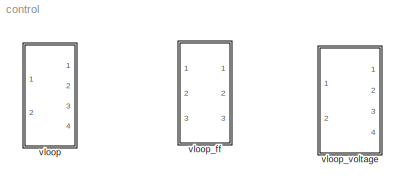
MODEL control
KIND library
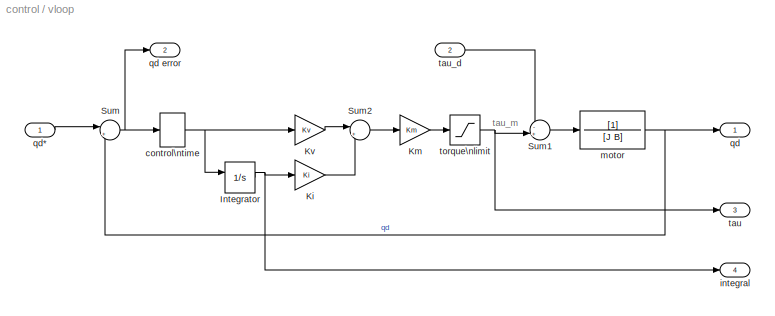
BLOCK [SubSystem] vloop
  FunctionWithSeparateData = off
  MaskHideContents = off
  MinAlgLoopOccurrences = off
  Opaque = off
  Ports = [2, 4]
  PropExecContextOutsideSubsystem = off
  RTWSystemCode = Auto
  RequestExecContextInheritance = off
  SID = 24
BLOCK [Integrator] vloop/Integrator
  ExternalReset = level
  LimitOutput = on
  LowerSaturationLimit = -1
  Ports = [2, 1]
  SID = 177
  UpperSaturationLimit = 1
BLOCK [Gain] vloop/Ki
  Gain = Ki
  OutDataTypeStr = Inherit: Inherit via internal rule
  ParamDataTypeStr = Inherit: Inherit via internal rule
  SID = 178
  SaturateOnIntegerOverflow = off
BLOCK [Gain] vloop/Km
  Gain = Km
  OutDataTypeStr = Inherit: Inherit via internal rule
  ParamDataTypeStr = Inherit: Inherit via internal rule
  SID = 179
  SaturateOnIntegerOverflow = off
BLOCK [Gain] vloop/Kv
  Gain = Kv
  OutDataTypeStr = Inherit: Inherit via internal rule
  ParamDataTypeStr = Inherit: Inherit via internal rule
  SID = 180
  SaturateOnIntegerOverflow = off
BLOCK [Sum] vloop/Sum
  IconShape = round
  InputSameDT = off
  Inputs = |+-
  OutDataTypeStr = Inherit: Inherit via internal rule
  Ports = [2, 1]
  SID = 181
  SaturateOnIntegerOverflow = off
BLOCK [Sum] vloop/Sum1
  IconShape = round
  InputSameDT = off
  Inputs = -+|
  OutDataTypeStr = Inherit: Inherit via internal rule
  Ports = [2, 1]
  SID = 182
  SaturateOnIntegerOverflow = off
BLOCK [Sum] vloop/Sum2
  IconShape = round
  InputSameDT = off
  Inputs = |++
  OutDataTypeStr = Inherit: Inherit via internal rule
  Ports = [2, 1]
  SID = 183
  SaturateOnIntegerOverflow = off
BLOCK [Delay] vloop/control\ntime
  DelayLength = 1
  InputPortMap = u0
  InputProcessing = Inherited
  Ports = [1, 1]
  SID = 184
  SampleTime = T
  UserData = DataTag0
  UserDataPersistent = on
BLOCK [Outport] vloop/integral
  IconDisplay = Port number
  Port = 4
  SID = 190
BLOCK [TransferFcn] vloop/motor
  ContinuousStateAttributes = 'qd'
  Denominator = [J B]
  SID = 185
BLOCK [Outport] vloop/qd
  IconDisplay = Port number
  SID = 187
BLOCK [Outport] vloop/qd error
  IconDisplay = Port number
  Port = 2
  SID = 188
BLOCK [Inport] vloop/qd*
  IconDisplay = Port number
  SID = 175
BLOCK [Outport] vloop/tau
  IconDisplay = Port number
  Port = 3
  SID = 189
BLOCK [Inport] vloop/tau_d
  IconDisplay = Port number
  Port = 2
  SID = 176
BLOCK [Saturate] vloop/torque\nlimit
  InputPortMap = u0
  LowerLimit = -tau_max
  Ports = [1, 1]
  SID = 186
  UpperLimit = tau_max
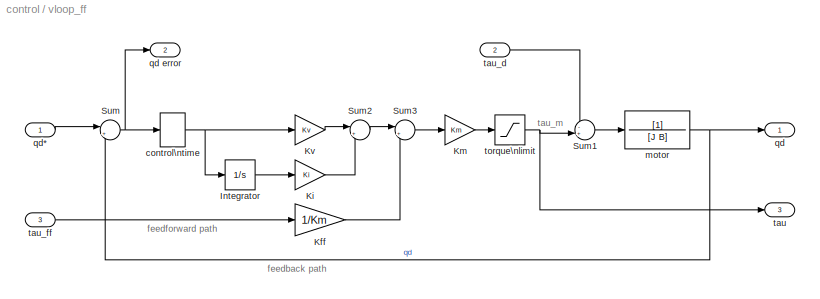
BLOCK [SubSystem] vloop_ff
  FunctionWithSeparateData = off
  MaskHideContents = off
  MinAlgLoopOccurrences = off
  Opaque = off
  Ports = [3, 3]
  PropExecContextOutsideSubsystem = off
  RTWSystemCode = Auto
  RequestExecContextInheritance = off
  SID = 41
BLOCK [Integrator] vloop_ff/Integrator
  Ports = [1, 1]
  SID = 45
BLOCK [Gain] vloop_ff/Kff
  Gain = 1/Km
  OutDataTypeStr = Inherit: Inherit via internal rule
  ParamDataTypeStr = Inherit: Inherit via internal rule
  SID = 58
  SaturateOnIntegerOverflow = off
BLOCK [Gain] vloop_ff/Ki
  Gain = Ki
  OutDataTypeStr = Inherit: Inherit via internal rule
  ParamDataTypeStr = Inherit: Inherit via internal rule
  SID = 44
  SaturateOnIntegerOverflow = off
BLOCK [Gain] vloop_ff/Km
  Gain = Km
  OutDataTypeStr = Inherit: Inherit via internal rule
  ParamDataTypeStr = Inherit: Inherit via internal rule
  SID = 46
  SaturateOnIntegerOverflow = off
BLOCK [Gain] vloop_ff/Kv
  Gain = Kv
  OutDataTypeStr = Inherit: Inherit via internal rule
  ParamDataTypeStr = Inherit: Inherit via internal rule
  SID = 47
  SaturateOnIntegerOverflow = off
BLOCK [Sum] vloop_ff/Sum
  IconShape = round
  InputSameDT = off
  Inputs = |+-
  OutDataTypeStr = Inherit: Inherit via internal rule
  Ports = [2, 1]
  SID = 48
  SaturateOnIntegerOverflow = off
BLOCK [Sum] vloop_ff/Sum1
  IconShape = round
  InputSameDT = off
  Inputs = -+|
  OutDataTypeStr = Inherit: Inherit via internal rule
  Ports = [2, 1]
  SID = 49
  SaturateOnIntegerOverflow = off
BLOCK [Sum] vloop_ff/Sum2
  IconShape = round
  InputSameDT = off
  Inputs = |++
  OutDataTypeStr = Inherit: Inherit via internal rule
  Ports = [2, 1]
  SID = 50
  SaturateOnIntegerOverflow = off
BLOCK [Sum] vloop_ff/Sum3
  IconShape = round
  InputSameDT = off
  Inputs = |++
  OutDataTypeStr = Inherit: Inherit via internal rule
  Ports = [2, 1]
  SID = 57
  SaturateOnIntegerOverflow = off
BLOCK [Delay] vloop_ff/control\ntime
  DelayLength = 1
  InputPortMap = u0
  InputProcessing = Inherited
  Ports = [1, 1]
  SID = 51
  SampleTime = T
  UserData = DataTag1
  UserDataPersistent = on
BLOCK [TransferFcn] vloop_ff/motor
  ContinuousStateAttributes = 'qd'
  Denominator = [J B]
  SID = 52
BLOCK [Outport] vloop_ff/qd
  IconDisplay = Port number
  SID = 54
BLOCK [Outport] vloop_ff/qd error
  IconDisplay = Port number
  Port = 2
  SID = 55
BLOCK [Inport] vloop_ff/qd*
  IconDisplay = Port number
  SID = 42
BLOCK [Outport] vloop_ff/tau
  IconDisplay = Port number
  Port = 3
  SID = 56
BLOCK [Inport] vloop_ff/tau_d
  IconDisplay = Port number
  Port = 2
  SID = 43
BLOCK [Inport] vloop_ff/tau_ff
  IconDisplay = Port number
  Port = 3
  SID = 59
BLOCK [Saturate] vloop_ff/torque\nlimit
  InputPortMap = u0
  LowerLimit = -tau_max
  Ports = [1, 1]
  SID = 53
  UpperLimit = tau_max
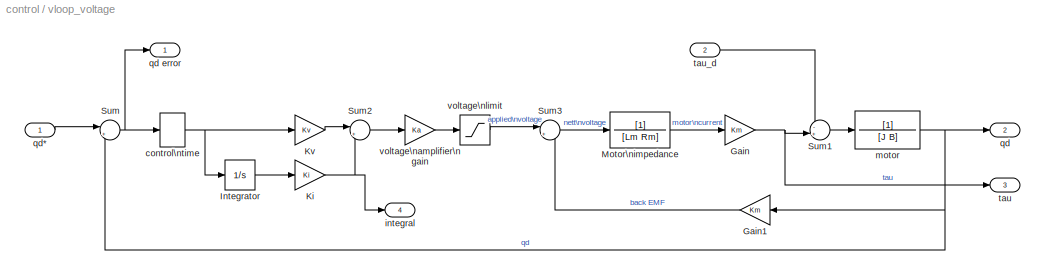
BLOCK [SubSystem] vloop_voltage
  FunctionWithSeparateData = off
  MaskHideContents = off
  MinAlgLoopOccurrences = off
  Opaque = off
  Ports = [2, 4]
  PropExecContextOutsideSubsystem = off
  RTWSystemCode = Auto
  RequestExecContextInheritance = off
  SID = 163
BLOCK [Gain] vloop_voltage/Gain
  Gain = Km
  OutDataTypeStr = Inherit: Inherit via internal rule
  ParamDataTypeStr = Inherit: Inherit via internal rule
  SID = 171
  SaturateOnIntegerOverflow = off
BLOCK [Gain] vloop_voltage/Gain1
  Gain = Km
  OutDataTypeStr = Inherit: Inherit via internal rule
  ParamDataTypeStr = Inherit: Inherit via internal rule
  SID = 172
  SaturateOnIntegerOverflow = off
BLOCK [Integrator] vloop_voltage/Integrator
  Ports = [1, 1]
  SID = 149
BLOCK [Gain] vloop_voltage/Ki
  Gain = Ki
  OutDataTypeStr = Inherit: Inherit via internal rule
  ParamDataTypeStr = Inherit: Inherit via internal rule
  SID = 150
  SaturateOnIntegerOverflow = off
BLOCK [Gain] vloop_voltage/Kv
  Gain = Kv
  OutDataTypeStr = Inherit: Inherit via internal rule
  ParamDataTypeStr = Inherit: Inherit via internal rule
  SID = 152
  SaturateOnIntegerOverflow = off
BLOCK [TransferFcn] vloop_voltage/Motor\nimpedance
  Denominator = [Lm Rm]
  SID = 170
BLOCK [Sum] vloop_voltage/Sum
  IconShape = round
  InputSameDT = off
  Inputs = |+-
  OutDataTypeStr = Inherit: Inherit via internal rule
  Ports = [2, 1]
  SID = 153
  SaturateOnIntegerOverflow = off
BLOCK [Sum] vloop_voltage/Sum1
  IconShape = round
  InputSameDT = off
  Inputs = -+|
  OutDataTypeStr = Inherit: Inherit via internal rule
  Ports = [2, 1]
  SID = 154
  SaturateOnIntegerOverflow = off
BLOCK [Sum] vloop_voltage/Sum2
  IconShape = round
  InputSameDT = off
  Inputs = |++
  OutDataTypeStr = Inherit: Inherit via internal rule
  Ports = [2, 1]
  SID = 155
  SaturateOnIntegerOverflow = off
BLOCK [Sum] vloop_voltage/Sum3
  IconShape = round
  InputSameDT = off
  Inputs = |+-
  OutDataTypeStr = Inherit: Inherit via internal rule
  Ports = [2, 1]
  SID = 173
  SaturateOnIntegerOverflow = off
BLOCK [Delay] vloop_voltage/control\ntime
  DelayLength = 1
  InputPortMap = u0
  InputProcessing = Inherited
  Ports = [1, 1]
  SID = 156
  SampleTime = T
  UserData = DataTag2
  UserDataPersistent = on
BLOCK [Outport] vloop_voltage/integral
  IconDisplay = Port number
  Port = 4
  SID = 174
BLOCK [TransferFcn] vloop_voltage/motor
  ContinuousStateAttributes = 'qd'
  Denominator = [J B]
  SID = 157
BLOCK [Outport] vloop_voltage/qd
  IconDisplay = Port number
  Port = 2
  SID = 167
BLOCK [Outport] vloop_voltage/qd error
  IconDisplay = Port number
  SID = 164
BLOCK [Inport] vloop_voltage/qd*
  IconDisplay = Port number
  SID = 165
BLOCK [Outport] vloop_voltage/tau
  IconDisplay = Port number
  Port = 3
  SID = 168
BLOCK [Inport] vloop_voltage/tau_d
  IconDisplay = Port number
  Port = 2
  SID = 166
BLOCK [Gain] vloop_voltage/voltage\namplifier\ngain
  Gain = Ka
  OutDataTypeStr = Inherit: Inherit via internal rule
  ParamDataTypeStr = Inherit: Inherit via internal rule
  SID = 151
  SaturateOnIntegerOverflow = off
BLOCK [Saturate] vloop_voltage/voltage\nlimit
  InputPortMap = u0
  LowerLimit = -v_max
  Ports = [1, 1]
  SID = 158
  UpperLimit = v_max
ANNOTATION vloop: tau_m
ANNOTATION vloop_ff: feedback path
ANNOTATION vloop_ff: feedforward path
ANNOTATION vloop_ff: tau_m
NET vloop/Integrator:1 -> vloop/Ki:1, vloop/integral:1
LINE vloop/Ki:1 -> vloop/Sum2:2
LINE vloop/Km:1 -> vloop/torque\nlimit:1
LINE vloop/Kv:1 -> vloop/Sum2:1
LINE vloop/Sum1:1 -> vloop/motor:1
LINE vloop/Sum2:1 -> vloop/Km:1
NET vloop/Sum:1 -> vloop/control\ntime:1, vloop/qd error:1
NET vloop/control\ntime:1 -> vloop/Integrator:1, vloop/Kv:1
NET vloop/motor:1 -> vloop/Sum:2, vloop/qd:1
LINE vloop/qd*:1 -> vloop/Sum:1
LINE vloop/tau_d:1 -> vloop/Sum1:1
NET vloop/torque\nlimit:1 -> vloop/Sum1:2, vloop/tau:1
LINE vloop_ff/Integrator:1 -> vloop_ff/Ki:1
LINE vloop_ff/Kff:1 -> vloop_ff/Sum3:2
LINE vloop_ff/Ki:1 -> vloop_ff/Sum2:2
LINE vloop_ff/Km:1 -> vloop_ff/torque\nlimit:1
LINE vloop_ff/Kv:1 -> vloop_ff/Sum2:1
LINE vloop_ff/Sum1:1 -> vloop_ff/motor:1
LINE vloop_ff/Sum2:1 -> vloop_ff/Sum3:1
LINE vloop_ff/Sum3:1 -> vloop_ff/Km:1
NET vloop_ff/Sum:1 -> vloop_ff/control\ntime:1, vloop_ff/qd error:1
NET vloop_ff/control\ntime:1 -> vloop_ff/Integrator:1, vloop_ff/Kv:1
NET vloop_ff/motor:1 -> vloop_ff/Sum:2, vloop_ff/qd:1
LINE vloop_ff/qd*:1 -> vloop_ff/Sum:1
LINE vloop_ff/tau_d:1 -> vloop_ff/Sum1:1
LINE vloop_ff/tau_ff:1 -> vloop_ff/Kff:1
NET vloop_ff/torque\nlimit:1 -> vloop_ff/Sum1:2, vloop_ff/tau:1
LINE vloop_voltage/Gain1:1 -> vloop_voltage/Sum3:2
NET vloop_voltage/Gain:1 -> vloop_voltage/Sum1:2, vloop_voltage/tau:1
LINE vloop_voltage/Integrator:1 -> vloop_voltage/Ki:1
NET vloop_voltage/Ki:1 -> vloop_voltage/Sum2:2, vloop_voltage/integral:1
LINE vloop_voltage/Kv:1 -> vloop_voltage/Sum2:1
LINE vloop_voltage/Motor\nimpedance:1 -> vloop_voltage/Gain:1
LINE vloop_voltage/Sum1:1 -> vloop_voltage/motor:1
LINE vloop_voltage/Sum2:1 -> vloop_voltage/voltage\namplifier\ngain:1
LINE vloop_voltage/Sum3:1 -> vloop_voltage/Motor\nimpedance:1
NET vloop_voltage/Sum:1 -> vloop_voltage/control\ntime:1, vloop_voltage/qd error:1
NET vloop_voltage/control\ntime:1 -> vloop_voltage/Integrator:1, vloop_voltage/Kv:1
NET vloop_voltage/motor:1 -> vloop_voltage/Gain1:1, vloop_voltage/Sum:2, vloop_voltage/qd:1
LINE vloop_voltage/qd*:1 -> vloop_voltage/Sum:1
LINE vloop_voltage/tau_d:1 -> vloop_voltage/Sum1:1
LINE vloop_voltage/voltage\namplifier\ngain:1 -> vloop_voltage/voltage\nlimit:1
LINE vloop_voltage/voltage\nlimit:1 -> vloop_voltage/Sum3:1
note: NET lines group one-source signal fan-out (src -> all destinations, sorted); 1:1 wires keep LINE
